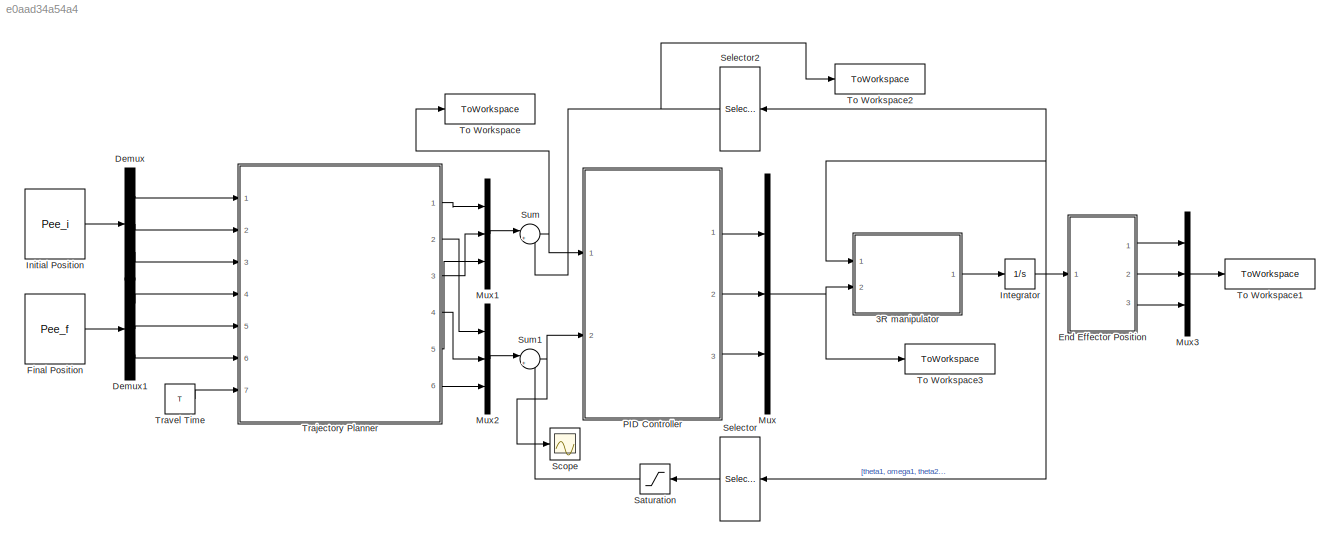
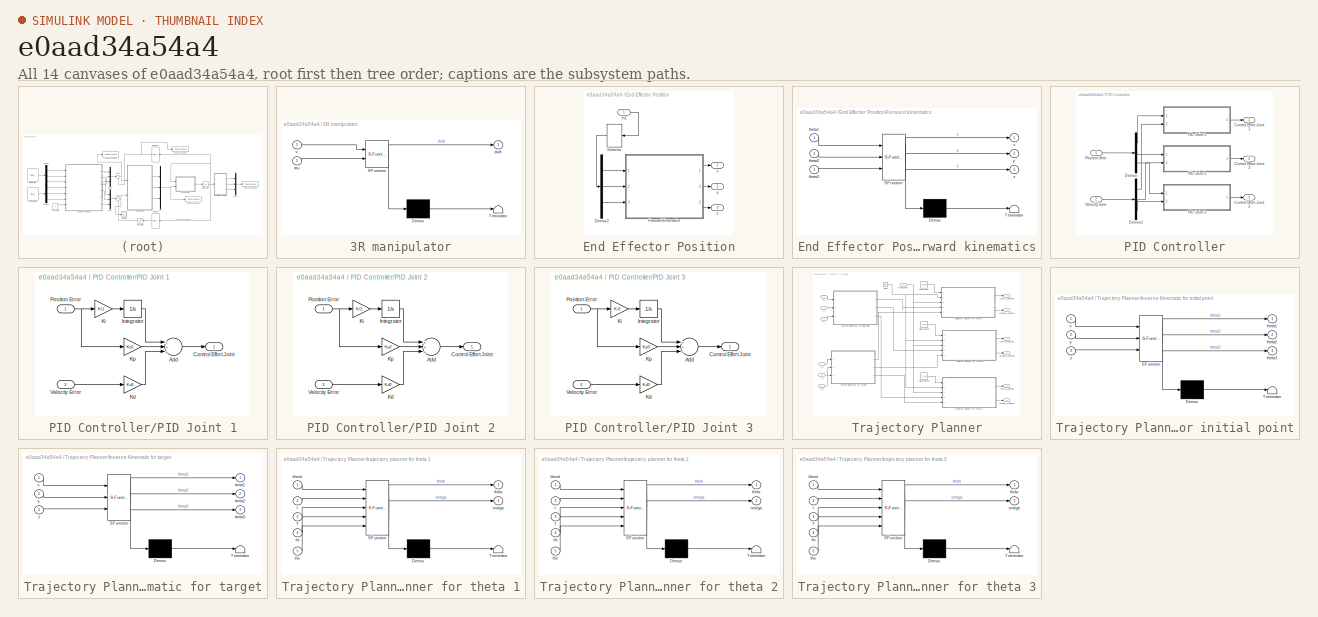
[diagram: thumbnail index - all 14 canvases of the model, root first then tree order]
MODEL slx_e0aad34a54a4
KIND model
CONFIG AbsTol = auto
CONFIG EnableMultiTasking = off
CONFIG FixedStep = auto
CONFIG MaxStep = auto
CONFIG MinStep = auto
CONFIG RelTol = 1e-3
CONFIG SampleTimeConstraint = Unconstrained
CONFIG Solver = ode45
CONFIG SolverName = ode45
CONFIG StartTime = 0.0
CONFIG StopTime = 10
BLOCK [SubSystem] 3R manipulator
  ErrorFcn = Stateflow.Translate.translate
  PermitHierarchicalResolution = ExplicitOnly
  Ports = [2, 1]
  RequestExecContextInheritance = off
  SFBlockType = MATLAB Function
  TreatAsAtomicUnit = on
BLOCK [Demux] 3R manipulator/ Demux 
  Outputs = 1
  Ports = [1, 1]
BLOCK [S-Function] 3R manipulator/ SFunction 
  EnableBusSupport = on
  FunctionName = sf_sfun
  PortCounts = [2 2]
  Ports = [2, 2]
  SFcnIsStateOwnerBlock = off
  SFunctionDeploymentMode = off
  Tag = Stateflow S-Function 2
BLOCK [Terminator] 3R manipulator/ Terminator 
BLOCK [Outport] 3R manipulator/dxdt
  IconDisplay = Port number
BLOCK [Inport] 3R manipulator/tau
  IconDisplay = Port number
  Port = 2
BLOCK [Inport] 3R manipulator/x
  IconDisplay = Port number
BLOCK [Demux] Demux
  DisplayOption = bar
  Outputs = 3
  Ports = [1, 3]
BLOCK [Demux] Demux1
  DisplayOption = bar
  Outputs = 3
  Ports = [1, 3]
BLOCK [SubSystem] End Effector Position
  Ports = [1, 3]
  RequestExecContextInheritance = off
BLOCK [Demux] End Effector Position/Demux2
  DisplayOption = bar
  Outputs = 3
  Ports = [1, 3]
BLOCK [SubSystem] End Effector Position/Forward kinematics
  ErrorFcn = Stateflow.Translate.translate
  PermitHierarchicalResolution = ExplicitOnly
  Ports = [3, 3]
  RequestExecContextInheritance = off
  SFBlockType = MATLAB Function
  TreatAsAtomicUnit = on
BLOCK [Demux] End Effector Position/Forward kinematics/ Demux 
  Outputs = 1
  Ports = [1, 1]
BLOCK [S-Function] End Effector Position/Forward kinematics/ SFunction 
  EnableBusSupport = on
  FunctionName = sf_sfun
  PortCounts = [3 4]
  Ports = [3, 4]
  SFcnIsStateOwnerBlock = off
  SFunctionDeploymentMode = off
  Tag = Stateflow S-Function 7
BLOCK [Terminator] End Effector Position/Forward kinematics/ Terminator 
BLOCK [Inport] End Effector Position/Forward kinematics/theta1
  IconDisplay = Port number
BLOCK [Inport] End Effector Position/Forward kinematics/theta2
  IconDisplay = Port number
  Port = 2
BLOCK [Inport] End Effector Position/Forward kinematics/theta3
  IconDisplay = Port number
  Port = 3
BLOCK [Outport] End Effector Position/Forward kinematics/x
  IconDisplay = Port number
BLOCK [Outport] End Effector Position/Forward kinematics/y
  IconDisplay = Port number
  Port = 2
BLOCK [Outport] End Effector Position/Forward kinematics/z
  IconDisplay = Port number
  Port = 3
BLOCK [Inport] End Effector Position/In1
  IconDisplay = Port number
BLOCK [Selector] End Effector Position/Selector
  IndexOptions = Index vector (dialog)
  Indices = [1 3 5]
  InputPortWidth = 6
  OutputSizes = 1
  Ports = [1, 1]
BLOCK [Outport] End Effector Position/x
  IconDisplay = Port number
BLOCK [Outport] End Effector Position/y
  IconDisplay = Port number
  Port = 2
BLOCK [Outport] End Effector Position/z
  IconDisplay = Port number
  Port = 3
BLOCK [Constant] Final Position
  Value = Pee_f
  VectorParams1D = off
BLOCK [Constant] Initial Position
  Value = Pee_i
  VectorParams1D = off
BLOCK [Integrator] Integrator
  InitialCondition = [0;0;0.01;0;0;0]
  Ports = [1, 1]
BLOCK [Mux] Mux
  DisplayOption = bar
  Inputs = 3
  Ports = [3, 1]
BLOCK [Mux] Mux1
  DisplayOption = bar
  Inputs = 3
  Ports = [3, 1]
BLOCK [Mux] Mux2
  DisplayOption = bar
  Inputs = 3
  Ports = [3, 1]
BLOCK [Mux] Mux3
  DisplayOption = bar
  Inputs = 3
  Ports = [3, 1]
BLOCK [SubSystem] PID Controller
  Ports = [2, 3]
  RequestExecContextInheritance = off
BLOCK [Outport] PID Controller/Control Effort Joint 1
  IconDisplay = Port number
BLOCK [Outport] PID Controller/Control Effort Joint 2
  IconDisplay = Port number
  Port = 2
BLOCK [Outport] PID Controller/Control Effort Joint 3
  IconDisplay = Port number
  Port = 3
BLOCK [Demux] PID Controller/Demux
  DisplayOption = bar
  Outputs = 3
  Ports = [1, 3]
BLOCK [Demux] PID Controller/Demux1
  DisplayOption = bar
  Outputs = 3
  Ports = [1, 3]
BLOCK [SubSystem] PID Controller/PID Joint 1
  Ports = [2, 1]
  RequestExecContextInheritance = off
BLOCK [Sum] PID Controller/PID Joint 1/Add
  InputSameDT = off
  Inputs = +++
  OutDataTypeStr = Inherit: Inherit via internal rule
  Ports = [3, 1]
  SaturateOnIntegerOverflow = off
BLOCK [Outport] PID Controller/PID Joint 1/Control Effort Joint
  IconDisplay = Port number
BLOCK [Integrator] PID Controller/PID Joint 1/Integrator
  Ports = [1, 1]
BLOCK [Gain] PID Controller/PID Joint 1/Kd
  Gain = Kd1
  OutDataTypeStr = Inherit: Inherit via internal rule
  ParamDataTypeStr = Inherit: Inherit via internal rule
  SaturateOnIntegerOverflow = off
BLOCK [Gain] PID Controller/PID Joint 1/Ki
  Gain = Ki1
  OutDataTypeStr = Inherit: Inherit via internal rule
  ParamDataTypeStr = Inherit: Inherit via internal rule
  SaturateOnIntegerOverflow = off
BLOCK [Gain] PID Controller/PID Joint 1/Kp
  Gain = Kp1
  OutDataTypeStr = Inherit: Inherit via internal rule
  ParamDataTypeStr = Inherit: Inherit via internal rule
  SaturateOnIntegerOverflow = off
BLOCK [Inport] PID Controller/PID Joint 1/Position Error
  IconDisplay = Port number
BLOCK [Inport] PID Controller/PID Joint 1/Velocity Error
  IconDisplay = Port number
  Port = 2
BLOCK [SubSystem] PID Controller/PID Joint 2
  Ports = [2, 1]
  RequestExecContextInheritance = off
BLOCK [Sum] PID Controller/PID Joint 2/Add
  InputSameDT = off
  Inputs = +++
  OutDataTypeStr = Inherit: Inherit via internal rule
  Ports = [3, 1]
  SaturateOnIntegerOverflow = off
BLOCK [Outport] PID Controller/PID Joint 2/Control Effort Joint
  IconDisplay = Port number
BLOCK [Integrator] PID Controller/PID Joint 2/Integrator
  Ports = [1, 1]
BLOCK [Gain] PID Controller/PID Joint 2/Kd
  Gain = Kd2
  OutDataTypeStr = Inherit: Inherit via internal rule
  ParamDataTypeStr = Inherit: Inherit via internal rule
  SaturateOnIntegerOverflow = off
BLOCK [Gain] PID Controller/PID Joint 2/Ki
  Gain = Ki2
  OutDataTypeStr = Inherit: Inherit via internal rule
  ParamDataTypeStr = Inherit: Inherit via internal rule
  SaturateOnIntegerOverflow = off
BLOCK [Gain] PID Controller/PID Joint 2/Kp
  Gain = Kp2
  OutDataTypeStr = Inherit: Inherit via internal rule
  ParamDataTypeStr = Inherit: Inherit via internal rule
  SaturateOnIntegerOverflow = off
BLOCK [Inport] PID Controller/PID Joint 2/Position Error
  IconDisplay = Port number
BLOCK [Inport] PID Controller/PID Joint 2/Velocity Error
  IconDisplay = Port number
  Port = 2
BLOCK [SubSystem] PID Controller/PID Joint 3
  Ports = [2, 1]
  RequestExecContextInheritance = off
BLOCK [Sum] PID Controller/PID Joint 3/Add
  InputSameDT = off
  Inputs = +++
  OutDataTypeStr = Inherit: Inherit via internal rule
  Ports = [3, 1]
  SaturateOnIntegerOverflow = off
BLOCK [Outport] PID Controller/PID Joint 3/Control Effort Joint
  IconDisplay = Port number
BLOCK [Integrator] PID Controller/PID Joint 3/Integrator
  Ports = [1, 1]
BLOCK [Gain] PID Controller/PID Joint 3/Kd
  Gain = Kd3
  OutDataTypeStr = Inherit: Inherit via internal rule
  ParamDataTypeStr = Inherit: Inherit via internal rule
  SaturateOnIntegerOverflow = off
BLOCK [Gain] PID Controller/PID Joint 3/Ki
  Gain = Ki3
  OutDataTypeStr = Inherit: Inherit via internal rule
  ParamDataTypeStr = Inherit: Inherit via internal rule
  SaturateOnIntegerOverflow = off
BLOCK [Gain] PID Controller/PID Joint 3/Kp
  Gain = Kp3
  OutDataTypeStr = Inherit: Inherit via internal rule
  ParamDataTypeStr = Inherit: Inherit via internal rule
  SaturateOnIntegerOverflow = off
BLOCK [Inport] PID Controller/PID Joint 3/Position Error
  IconDisplay = Port number
BLOCK [Inport] PID Controller/PID Joint 3/Velocity Error
  IconDisplay = Port number
  Port = 2
BLOCK [Inport] PID Controller/Position Error
  IconDisplay = Port number
BLOCK [Inport] PID Controller/Velocity Error
  IconDisplay = Port number
  Port = 2
BLOCK [Saturate] Saturation
  InputPortMap = u0
  LowerLimit = -3
  Ports = [1, 1]
  UpperLimit = 3
BLOCK [Scope] Scope
  Floating = off
  NumInputPorts = 1
  Ports = [1]
  ScopeSpecificationString = Simulink.scopes.TimeScopeBlockCfg('CurrentConfiguration', extmgr.ConfigurationSet(extmgr.Configuration('Core','General UI',true),extmgr.Configuration('Core','Source UI',true),extmgr.Configuration('Sources','WiredSimulink',true),extmgr.Configuration('Visuals','Time Domain',true,'SerializedDisplays',{struct('MinYLimReal','-3.75836','MaxYLimReal','3.75329','YLabelReal','','MinYLimMag','0.00000','MaxY...<+1396ch>
BLOCK [Selector] Selector
  IndexOptions = Index vector (dialog)
  Indices = [2 4 6]
  InputPortWidth = 6
  OutputSizes = 1
  Ports = [1, 1]
BLOCK [Selector] Selector2
  IndexOptions = Index vector (dialog)
  Indices = [1 3 5]
  InputPortWidth = 6
  OutputSizes = 1
  Ports = [1, 1]
BLOCK [Sum] Sum
  IconShape = round
  InputSameDT = off
  Inputs = |+-
  OutDataTypeStr = Inherit: Inherit via internal rule
  Ports = [2, 1]
  SaturateOnIntegerOverflow = off
BLOCK [Sum] Sum1
  IconShape = round
  InputSameDT = off
  Inputs = |+-
  OutDataTypeStr = Inherit: Inherit via internal rule
  Ports = [2, 1]
  SaturateOnIntegerOverflow = off
BLOCK [ToWorkspace] To Workspace
  FixptAsFi = on
  MaxDataPoints = inf
  Ports = [1]
  SampleTime = -1
  Save2DSignal = 2-D array (concatenate along first dimension)
  SaveFormat = Timeseries
  VariableName = Error
BLOCK [ToWorkspace] To Workspace1
  FixptAsFi = on
  MaxDataPoints = inf
  Ports = [1]
  SampleTime = -1
  Save2DSignal = 2-D array (concatenate along first dimension)
  SaveFormat = Timeseries
  VariableName = Cart_Pos
BLOCK [ToWorkspace] To Workspace2
  FixptAsFi = on
  MaxDataPoints = inf
  Ports = [1]
  SampleTime = -1
  Save2DSignal = 2-D array (concatenate along first dimension)
  SaveFormat = Timeseries
  VariableName = Joint_Pos
BLOCK [ToWorkspace] To Workspace3
  FixptAsFi = on
  MaxDataPoints = inf
  Ports = [1]
  SampleTime = -1
  Save2DSignal = 2-D array (concatenate along first dimension)
  SaveFormat = Timeseries
  VariableName = C_Eff
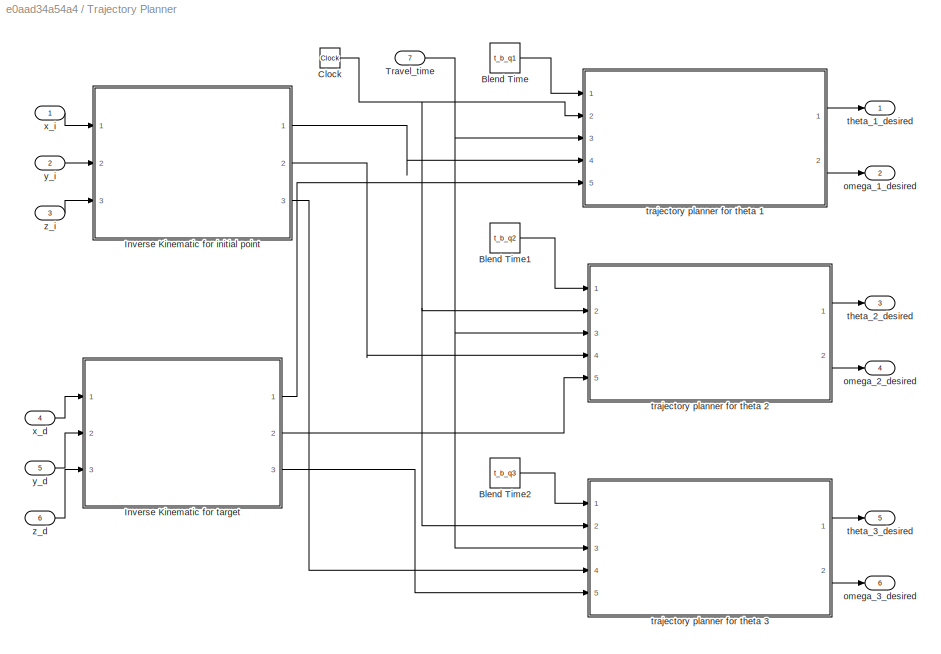
BLOCK [SubSystem] Trajectory Planner
  Ports = [7, 6]
  RequestExecContextInheritance = off
BLOCK [Constant] Trajectory Planner/Blend Time
  Value = t_b_q1
BLOCK [Constant] Trajectory Planner/Blend Time1
  Value = t_b_q2
BLOCK [Constant] Trajectory Planner/Blend Time2
  Value = t_b_q3
BLOCK [Clock] Trajectory Planner/Clock
BLOCK [SubSystem] Trajectory Planner/Inverse Kinematic for initial point
  ErrorFcn = Stateflow.Translate.translate
  PermitHierarchicalResolution = ExplicitOnly
  Ports = [3, 3]
  RequestExecContextInheritance = off
  SFBlockType = MATLAB Function
  TreatAsAtomicUnit = on
BLOCK [Demux] Trajectory Planner/Inverse Kinematic for initial point/ Demux 
  Outputs = 1
  Ports = [1, 1]
BLOCK [S-Function] Trajectory Planner/Inverse Kinematic for initial point/ SFunction 
  EnableBusSupport = on
  FunctionName = sf_sfun
  PortCounts = [3 4]
  Ports = [3, 4]
  SFcnIsStateOwnerBlock = off
  SFunctionDeploymentMode = off
  Tag = Stateflow S-Function 1
BLOCK [Terminator] Trajectory Planner/Inverse Kinematic for initial point/ Terminator 
BLOCK [Outport] Trajectory Planner/Inverse Kinematic for initial point/theta1
  IconDisplay = Port number
BLOCK [Outport] Trajectory Planner/Inverse Kinematic for initial point/theta2
  IconDisplay = Port number
  Port = 2
BLOCK [Outport] Trajectory Planner/Inverse Kinematic for initial point/theta3
  IconDisplay = Port number
  Port = 3
BLOCK [Inport] Trajectory Planner/Inverse Kinematic for initial point/x
  IconDisplay = Port number
BLOCK [Inport] Trajectory Planner/Inverse Kinematic for initial point/y
  IconDisplay = Port number
  Port = 2
BLOCK [Inport] Trajectory Planner/Inverse Kinematic for initial point/z
  IconDisplay = Port number
  Port = 3
BLOCK [SubSystem] Trajectory Planner/Inverse Kinematic for target
  ErrorFcn = Stateflow.Translate.translate
  PermitHierarchicalResolution = ExplicitOnly
  Ports = [3, 3]
  RequestExecContextInheritance = off
  SFBlockType = MATLAB Function
  TreatAsAtomicUnit = on
BLOCK [Demux] Trajectory Planner/Inverse Kinematic for target/ Demux 
  Outputs = 1
  Ports = [1, 1]
BLOCK [S-Function] Trajectory Planner/Inverse Kinematic for target/ SFunction 
  EnableBusSupport = on
  FunctionName = sf_sfun
  PortCounts = [3 4]
  Ports = [3, 4]
  SFcnIsStateOwnerBlock = off
  SFunctionDeploymentMode = off
  Tag = Stateflow S-Function 6
BLOCK [Terminator] Trajectory Planner/Inverse Kinematic for target/ Terminator 
BLOCK [Outport] Trajectory Planner/Inverse Kinematic for target/theta1
  IconDisplay = Port number
BLOCK [Outport] Trajectory Planner/Inverse Kinematic for target/theta2
  IconDisplay = Port number
  Port = 2
BLOCK [Outport] Trajectory Planner/Inverse Kinematic for target/theta3
  IconDisplay = Port number
  Port = 3
BLOCK [Inport] Trajectory Planner/Inverse Kinematic for target/x
  IconDisplay = Port number
BLOCK [Inport] Trajectory Planner/Inverse Kinematic for target/y
  IconDisplay = Port number
  Port = 2
BLOCK [Inport] Trajectory Planner/Inverse Kinematic for target/z
  IconDisplay = Port number
  Port = 3
BLOCK [Inport] Trajectory Planner/Travel_time
  IconDisplay = Port number
  Port = 7
BLOCK [Outport] Trajectory Planner/omega_1_desired
  IconDisplay = Port number
  Port = 2
BLOCK [Outport] Trajectory Planner/omega_2_desired
  IconDisplay = Port number
  Port = 4
BLOCK [Outport] Trajectory Planner/omega_3_desired
  IconDisplay = Port number
  Port = 6
BLOCK [Outport] Trajectory Planner/theta_1_desired
  IconDisplay = Port number
BLOCK [Outport] Trajectory Planner/theta_2_desired
  IconDisplay = Port number
  Port = 3
BLOCK [Outport] Trajectory Planner/theta_3_desired
  IconDisplay = Port number
  Port = 5
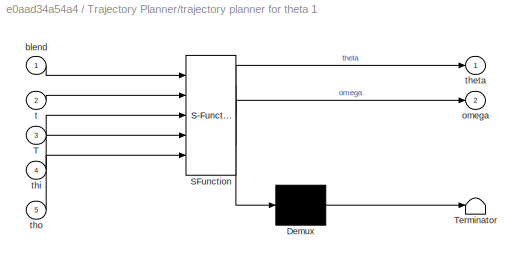
BLOCK [SubSystem] Trajectory Planner/trajectory planner for theta 1
  ErrorFcn = Stateflow.Translate.translate
  PermitHierarchicalResolution = ExplicitOnly
  Ports = [5, 2]
  RequestExecContextInheritance = off
  SFBlockType = MATLAB Function
  TreatAsAtomicUnit = on
BLOCK [Demux] Trajectory Planner/trajectory planner for theta 1/ Demux 
  Outputs = 1
  Ports = [1, 1]
BLOCK [S-Function] Trajectory Planner/trajectory planner for theta 1/ SFunction 
  EnableBusSupport = on
  FunctionName = sf_sfun
  PortCounts = [5 3]
  Ports = [5, 3]
  SFcnIsStateOwnerBlock = off
  SFunctionDeploymentMode = off
  Tag = Stateflow S-Function 3
BLOCK [Terminator] Trajectory Planner/trajectory planner for theta 1/ Terminator 
BLOCK [Inport] Trajectory Planner/trajectory planner for theta 1/T
  IconDisplay = Port number
  Port = 3
BLOCK [Inport] Trajectory Planner/trajectory planner for theta 1/blend
  IconDisplay = Port number
BLOCK [Outport] Trajectory Planner/trajectory planner for theta 1/omega
  IconDisplay = Port number
  Port = 2
BLOCK [Inport] Trajectory Planner/trajectory planner for theta 1/t
  IconDisplay = Port number
  Port = 2
BLOCK [Outport] Trajectory Planner/trajectory planner for theta 1/theta
  IconDisplay = Port number
BLOCK [Inport] Trajectory Planner/trajectory planner for theta 1/thi
  IconDisplay = Port number
  Port = 4
BLOCK [Inport] Trajectory Planner/trajectory planner for theta 1/tho
  IconDisplay = Port number
  Port = 5
BLOCK [SubSystem] Trajectory Planner/trajectory planner for theta 2
  ErrorFcn = Stateflow.Translate.translate
  PermitHierarchicalResolution = ExplicitOnly
  Ports = [5, 2]
  RequestExecContextInheritance = off
  SFBlockType = MATLAB Function
  TreatAsAtomicUnit = on
BLOCK [Demux] Trajectory Planner/trajectory planner for theta 2/ Demux 
  Outputs = 1
  Ports = [1, 1]
BLOCK [S-Function] Trajectory Planner/trajectory planner for theta 2/ SFunction 
  EnableBusSupport = on
  FunctionName = sf_sfun
  PortCounts = [5 3]
  Ports = [5, 3]
  SFcnIsStateOwnerBlock = off
  SFunctionDeploymentMode = off
  Tag = Stateflow S-Function 4
BLOCK [Terminator] Trajectory Planner/trajectory planner for theta 2/ Terminator 
BLOCK [Inport] Trajectory Planner/trajectory planner for theta 2/T
  IconDisplay = Port number
  Port = 3
BLOCK [Inport] Trajectory Planner/trajectory planner for theta 2/blend
  IconDisplay = Port number
BLOCK [Outport] Trajectory Planner/trajectory planner for theta 2/omega
  IconDisplay = Port number
  Port = 2
BLOCK [Inport] Trajectory Planner/trajectory planner for theta 2/t
  IconDisplay = Port number
  Port = 2
BLOCK [Outport] Trajectory Planner/trajectory planner for theta 2/theta
  IconDisplay = Port number
BLOCK [Inport] Trajectory Planner/trajectory planner for theta 2/thi
  IconDisplay = Port number
  Port = 4
BLOCK [Inport] Trajectory Planner/trajectory planner for theta 2/tho
  IconDisplay = Port number
  Port = 5
BLOCK [SubSystem] Trajectory Planner/trajectory planner for theta 3
  ErrorFcn = Stateflow.Translate.translate
  PermitHierarchicalResolution = ExplicitOnly
  Ports = [5, 2]
  RequestExecContextInheritance = off
  SFBlockType = MATLAB Function
  TreatAsAtomicUnit = on
BLOCK [Demux] Trajectory Planner/trajectory planner for theta 3/ Demux 
  Outputs = 1
  Ports = [1, 1]
BLOCK [S-Function] Trajectory Planner/trajectory planner for theta 3/ SFunction 
  EnableBusSupport = on
  FunctionName = sf_sfun
  PortCounts = [5 3]
  Ports = [5, 3]
  SFcnIsStateOwnerBlock = off
  SFunctionDeploymentMode = off
  Tag = Stateflow S-Function 5
BLOCK [Terminator] Trajectory Planner/trajectory planner for theta 3/ Terminator 
BLOCK [Inport] Trajectory Planner/trajectory planner for theta 3/T
  IconDisplay = Port number
  Port = 3
BLOCK [Inport] Trajectory Planner/trajectory planner for theta 3/blend
  IconDisplay = Port number
BLOCK [Outport] Trajectory Planner/trajectory planner for theta 3/omega
  IconDisplay = Port number
  Port = 2
BLOCK [Inport] Trajectory Planner/trajectory planner for theta 3/t
  IconDisplay = Port number
  Port = 2
BLOCK [Outport] Trajectory Planner/trajectory planner for theta 3/theta
  IconDisplay = Port number
BLOCK [Inport] Trajectory Planner/trajectory planner for theta 3/thi
  IconDisplay = Port number
  Port = 4
BLOCK [Inport] Trajectory Planner/trajectory planner for theta 3/tho
  IconDisplay = Port number
  Port = 5
BLOCK [Inport] Trajectory Planner/x_d
  IconDisplay = Port number
  Port = 4
BLOCK [Inport] Trajectory Planner/x_i
  IconDisplay = Port number
BLOCK [Inport] Trajectory Planner/y_d
  IconDisplay = Port number
  Port = 5
BLOCK [Inport] Trajectory Planner/y_i
  IconDisplay = Port number
  Port = 2
BLOCK [Inport] Trajectory Planner/z_d
  IconDisplay = Port number
  Port = 6
BLOCK [Inport] Trajectory Planner/z_i
  IconDisplay = Port number
  Port = 3
BLOCK [Constant] Travel Time 
  Value = T
LINE 3R manipulator:1 -> Integrator:1
LINE Demux1:1 -> Trajectory Planner:4
LINE Demux1:2 -> Trajectory Planner:5
LINE Demux1:3 -> Trajectory Planner:6
LINE Demux:1 -> Trajectory Planner:1
LINE Demux:2 -> Trajectory Planner:2
LINE Demux:3 -> Trajectory Planner:3
LINE End Effector Position/Demux2:1 -> End Effector Position/Forward kinematics:1
LINE End Effector Position/Demux2:2 -> End Effector Position/Forward kinematics:2
LINE End Effector Position/Demux2:3 -> End Effector Position/Forward kinematics:3
LINE End Effector Position/Forward kinematics:1 -> End Effector Position/x:1
LINE End Effector Position/Forward kinematics:2 -> End Effector Position/y:1
LINE End Effector Position/Forward kinematics:3 -> End Effector Position/z:1
LINE End Effector Position/In1:1 -> End Effector Position/Selector:1
LINE End Effector Position/Selector:1 -> End Effector Position/Demux2:1
LINE End Effector Position:1 -> Mux3:1
LINE End Effector Position:2 -> Mux3:2
LINE End Effector Position:3 -> Mux3:3
LINE Final Position:1 -> Demux1:1
LINE Initial Position:1 -> Demux:1
NET Integrator:1 -> 3R manipulator:1, End Effector Position:1, Selector2:1, Selector:1
LINE Mux1:1 -> Sum:1
LINE Mux2:1 -> Sum1:1
LINE Mux3:1 -> To Workspace1:1
NET Mux:1 -> 3R manipulator:2, To Workspace3:1
LINE PID Controller/Demux1:1 -> PID Controller/PID Joint 1:2
LINE PID Controller/Demux1:2 -> PID Controller/PID Joint 2:2
LINE PID Controller/Demux1:3 -> PID Controller/PID Joint 3:2
LINE PID Controller/Demux:1 -> PID Controller/PID Joint 1:1
LINE PID Controller/Demux:2 -> PID Controller/PID Joint 2:1
LINE PID Controller/Demux:3 -> PID Controller/PID Joint 3:1
LINE PID Controller/PID Joint 1/Add:1 -> PID Controller/PID Joint 1/Control Effort Joint:1
LINE PID Controller/PID Joint 1/Integrator:1 -> PID Controller/PID Joint 1/Add:1
LINE PID Controller/PID Joint 1/Kd:1 -> PID Controller/PID Joint 1/Add:3
LINE PID Controller/PID Joint 1/Ki:1 -> PID Controller/PID Joint 1/Integrator:1
LINE PID Controller/PID Joint 1/Kp:1 -> PID Controller/PID Joint 1/Add:2
NET PID Controller/PID Joint 1/Position Error:1 -> PID Controller/PID Joint 1/Ki:1, PID Controller/PID Joint 1/Kp:1
LINE PID Controller/PID Joint 1/Velocity Error:1 -> PID Controller/PID Joint 1/Kd:1
LINE PID Controller/PID Joint 1:1 -> PID Controller/Control Effort Joint 1:1
LINE PID Controller/PID Joint 2/Add:1 -> PID Controller/PID Joint 2/Control Effort Joint:1
LINE PID Controller/PID Joint 2/Integrator:1 -> PID Controller/PID Joint 2/Add:1
LINE PID Controller/PID Joint 2/Kd:1 -> PID Controller/PID Joint 2/Add:3
LINE PID Controller/PID Joint 2/Ki:1 -> PID Controller/PID Joint 2/Integrator:1
LINE PID Controller/PID Joint 2/Kp:1 -> PID Controller/PID Joint 2/Add:2
NET PID Controller/PID Joint 2/Position Error:1 -> PID Controller/PID Joint 2/Ki:1, PID Controller/PID Joint 2/Kp:1
LINE PID Controller/PID Joint 2/Velocity Error:1 -> PID Controller/PID Joint 2/Kd:1
LINE PID Controller/PID Joint 2:1 -> PID Controller/Control Effort Joint 2:1
LINE PID Controller/PID Joint 3/Add:1 -> PID Controller/PID Joint 3/Control Effort Joint:1
LINE PID Controller/PID Joint 3/Integrator:1 -> PID Controller/PID Joint 3/Add:1
LINE PID Controller/PID Joint 3/Kd:1 -> PID Controller/PID Joint 3/Add:3
LINE PID Controller/PID Joint 3/Ki:1 -> PID Controller/PID Joint 3/Integrator:1
LINE PID Controller/PID Joint 3/Kp:1 -> PID Controller/PID Joint 3/Add:2
NET PID Controller/PID Joint 3/Position Error:1 -> PID Controller/PID Joint 3/Ki:1, PID Controller/PID Joint 3/Kp:1
LINE PID Controller/PID Joint 3/Velocity Error:1 -> PID Controller/PID Joint 3/Kd:1
LINE PID Controller/PID Joint 3:1 -> PID Controller/Control Effort Joint 3:1
LINE PID Controller/Position Error:1 -> PID Controller/Demux:1
LINE PID Controller/Velocity Error:1 -> PID Controller/Demux1:1
LINE PID Controller:1 -> Mux:1
LINE PID Controller:2 -> Mux:2
LINE PID Controller:3 -> Mux:3
LINE Saturation:1 -> Sum1:2
NET Selector2:1 -> Sum:2, To Workspace2:1
LINE Selector:1 -> Saturation:1
NET Sum1:1 -> PID Controller:2, Scope:1
NET Sum:1 -> PID Controller:1, To Workspace:1
LINE Trajectory Planner/Blend Time1:1 -> Trajectory Planner/trajectory planner for theta 2:1
LINE Trajectory Planner/Blend Time2:1 -> Trajectory Planner/trajectory planner for theta 3:1
LINE Trajectory Planner/Blend Time:1 -> Trajectory Planner/trajectory planner for theta 1:1
NET Trajectory Planner/Clock:1 -> Trajectory Planner/trajectory planner for theta 1:2, Trajectory Planner/trajectory planner for theta 2:2, Trajectory Planner/trajectory planner for theta 3:2
LINE Trajectory Planner/Inverse Kinematic for initial point:1 -> Trajectory Planner/trajectory planner for theta 1:4
LINE Trajectory Planner/Inverse Kinematic for initial point:2 -> Trajectory Planner/trajectory planner for theta 2:4
LINE Trajectory Planner/Inverse Kinematic for initial point:3 -> Trajectory Planner/trajectory planner for theta 3:4
LINE Trajectory Planner/Inverse Kinematic for target:1 -> Trajectory Planner/trajectory planner for theta 1:5
LINE Trajectory Planner/Inverse Kinematic for target:2 -> Trajectory Planner/trajectory planner for theta 2:5
LINE Trajectory Planner/Inverse Kinematic for target:3 -> Trajectory Planner/trajectory planner for theta 3:5
NET Trajectory Planner/Travel_time:1 -> Trajectory Planner/trajectory planner for theta 1:3, Trajectory Planner/trajectory planner for theta 2:3, Trajectory Planner/trajectory planner for theta 3:3
LINE Trajectory Planner/trajectory planner for theta 1:1 -> Trajectory Planner/theta_1_desired:1
LINE Trajectory Planner/trajectory planner for theta 1:2 -> Trajectory Planner/omega_1_desired:1
LINE Trajectory Planner/trajectory planner for theta 2:1 -> Trajectory Planner/theta_2_desired:1
LINE Trajectory Planner/trajectory planner for theta 2:2 -> Trajectory Planner/omega_2_desired:1
LINE Trajectory Planner/trajectory planner for theta 3:1 -> Trajectory Planner/theta_3_desired:1
LINE Trajectory Planner/trajectory planner for theta 3:2 -> Trajectory Planner/omega_3_desired:1
LINE Trajectory Planner/x_d:1 -> Trajectory Planner/Inverse Kinematic for target:1
LINE Trajectory Planner/x_i:1 -> Trajectory Planner/Inverse Kinematic for initial point:1
LINE Trajectory Planner/y_d:1 -> Trajectory Planner/Inverse Kinematic for target:2
LINE Trajectory Planner/y_i:1 -> Trajectory Planner/Inverse Kinematic for initial point:2
LINE Trajectory Planner/z_d:1 -> Trajectory Planner/Inverse Kinematic for target:3
LINE Trajectory Planner/z_i:1 -> Trajectory Planner/Inverse Kinematic for initial point:3
LINE Trajectory Planner:1 -> Mux1:1
LINE Trajectory Planner:2 -> Mux2:1
LINE Trajectory Planner:3 -> Mux1:2
LINE Trajectory Planner:4 -> Mux2:2
LINE Trajectory Planner:5 -> Mux1:3
LINE Trajectory Planner:6 -> Mux2:3
LINE Travel Time :1 -> Trajectory Planner:7
note: NET lines group one-source signal fan-out (src -> all destinations, sorted); 1:1 wires keep LINE
CHART Trajectory Planner/Inverse Kinematic for initial point states=1 transitions=1
  STATE_LABEL 'eML_blk_kernel()'
  STATE_LABEL 'SCRIPT:\nfunction [theta1, theta2, theta3] = inverse_kinematic(x, y, z)\n\nL1=1.5; L2=0.8; L3=0.7;\ntheta1 = atan2(y, x);\ntheta3 = acos((x^2+y^2+(z-L1)^2-L2^2-L3^2)/(2*L2*L3));\nphi = atan2(L3*sin(theta3), L3*cos(theta3)+L2);\ndisp(phi/pi*180)\ntheta2 = asin((z-L1)*cos(phi)/(L3*cos(theta3)+L2))-phi;\n\nend'
CHART 3R manipulator states=1 transitions=1
  STATE_LABEL 'eML_blk_kernel()'
  STATE_LABEL 'SCRIPT:\n\nfunction dxdt = Plant_3R (x, tau)\nth1 = x(1);\nth1_d = x(2);\nth2 = x(3);\nth2_d = x(4);\nth3 = x(5);\nth3_d = x(6);\ndxdt = zeros(6,1);\ndxdt(1) = th1_d;\ndxdt(2) = (2.4e+3*tau(1)-670.0*th1_d*th2_d*sin(th3)+...\n    290.0*th1_d*th2_d*sin(2.0*th2+2.0*th3)+...\n    290.0*th1_d*th3_d*sin(2.0*th2+2.0*th3)+...\n    670.0*th1_d*th2_d*sin(2.0*th2+th3)+...\n    380.0*th1_d*th2_d*sin(2.0*th2))/(340.0*cos(2.0...<+495ch>'
CHART Trajectory Planner/trajectory planner for theta 1 states=1 transitions=1
  STATE_LABEL 'eML_blk_kernel()'
  STATE_LABEL 'SCRIPT:\nfunction [theta, omega] = trajectory_planner(blend, t, T, thi, tho)\n%t is the current time\n%T is the toal time of the movement. \n%thi is the initial angle\n%tho is the target angle\n% blend = 1;\n\nV_max = (tho-thi)/(T-blend);\na = V_max/blend;\n\nif t<=blend\n    alpha = a;\n    omega = a*t;\n    theta = 1/2*a*t.^2+thi;\nelseif t<=(T-blend)\n    alpha = 0;\n    omega = V_max;\n    theta = 1/2*a*blend^2...<+198ch>'
CHART Trajectory Planner/trajectory planner for theta 2 states=1 transitions=1
  STATE_LABEL 'eML_blk_kernel()'
  STATE_LABEL 'SCRIPT:\nfunction [theta, omega] = trajectory_planner(blend, t, T, thi, tho)\n%t is the current time\n%T is the toal time of the movement. \n%thi is the initial angle\n%tho is the target angle\nblend = 1;\n\nV_max = (tho-thi)/(T-blend);\na = V_max/blend;\n\nif t<=blend\n    alpha = a;\n    omega = a*t;\n    theta = 1/2*a*t.^2+thi;\nelseif t<=(T-blend)\n    alpha = 0;\n    omega = V_max;\n    theta = 1/2*a*blend^2+t...<+196ch>'
CHART Trajectory Planner/trajectory planner for theta 3 states=1 transitions=1
  STATE_LABEL 'eML_blk_kernel()'
  STATE_LABEL 'SCRIPT:\nfunction [theta, omega] = trajectory_planner(blend, t, T, thi, tho)\n%t is the current time\n%T is the toal time of the movement. \n%thi is the initial angle\n%tho is the target angle\nblend = 1;\n\nV_max = (tho-thi)/(T-blend);\na = V_max/blend;\n\nif t<=blend\n    alpha = a;\n    omega = a*t;\n    theta = 1/2*a*t.^2+thi;\nelseif t<=(T-blend)\n    alpha = 0;\n    omega = V_max;\n    theta = 1/2*a*blend^2+t...<+196ch>'
CHART Trajectory Planner/Inverse Kinematic for target states=1 transitions=1
  STATE_LABEL 'eML_blk_kernel()'
  STATE_LABEL 'SCRIPT:\nfunction [theta1, theta2, theta3] = inverse_kinematic(x, y, z)\n\nL1=1.5; L2=0.8; L3=0.7;\ntheta1 = atan2(y, x);\ntheta3 = acos((x^2+y^2+(z-L1)^2-L2^2-L3^2)/(2*L2*L3));\nphi = atan2(L3*sin(theta3), L3*cos(theta3)+L2);\ndisp(phi/pi*180)\ntheta2 = asin((z-L1)*cos(phi)/(L3*cos(theta3)+L2))-phi;\n\nend'
CHART End Effector Position/Forward kinematics states=1 transitions=1
  STATE_LABEL 'eML_blk_kernel()'
  STATE_LABEL 'SCRIPT:\nfunction [x, y, z] = fcn(theta1, theta2, theta3)\nL1=1.5; L2=0.8; L3=0.7;T_01 = [cos(theta1) -sin(theta1) 0  0;\n        sin(theta1)  cos(theta1) 0  0;\n        0            0           1  0;\n        0            0           0  1];\n    \nT_12 = [cos(theta2) -sin(theta2) 0  0;\n        0            0          -1  0;\n        sin(theta2)  cos(theta2) 0  0;\n        0            0           0  1];\n ...<+409ch>'
